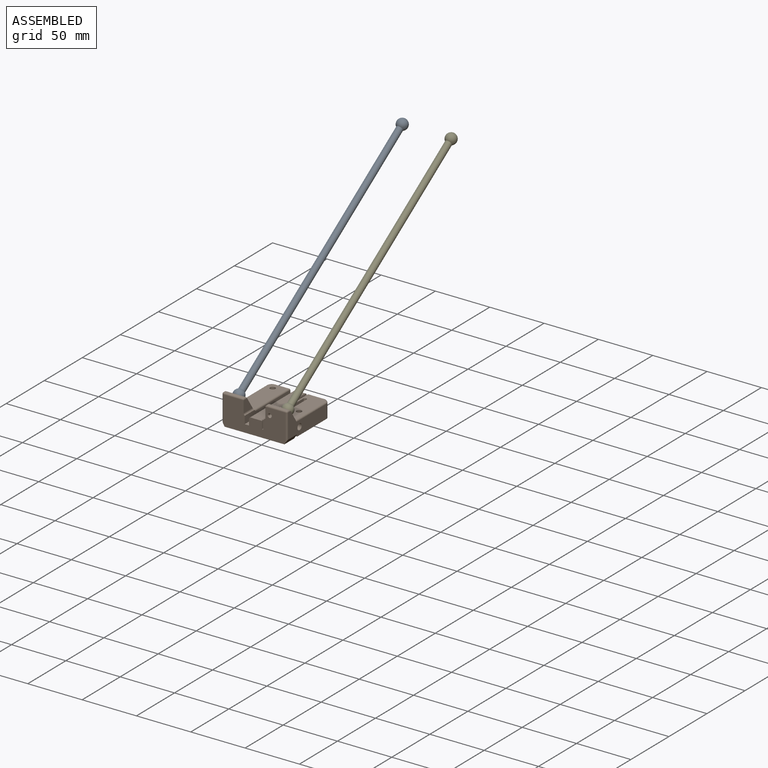
[diagram: assembled view]
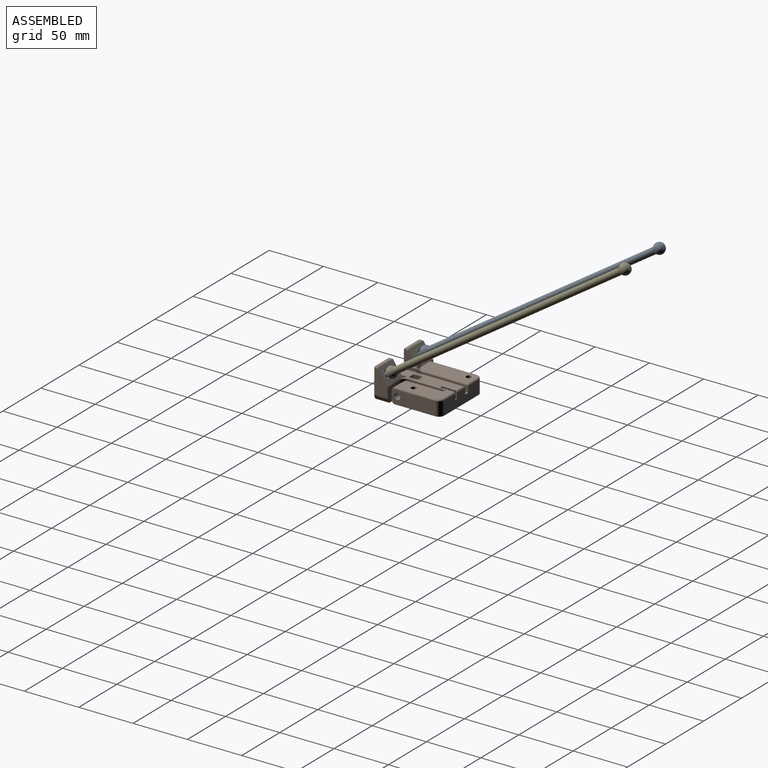
[diagram: assembled view, second angle]
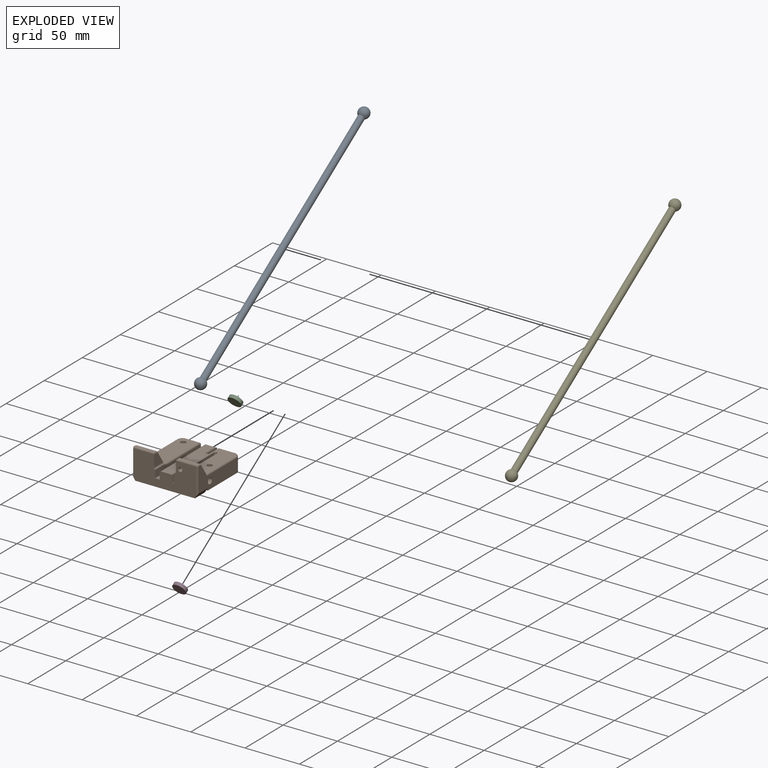
[diagram: exploded view]
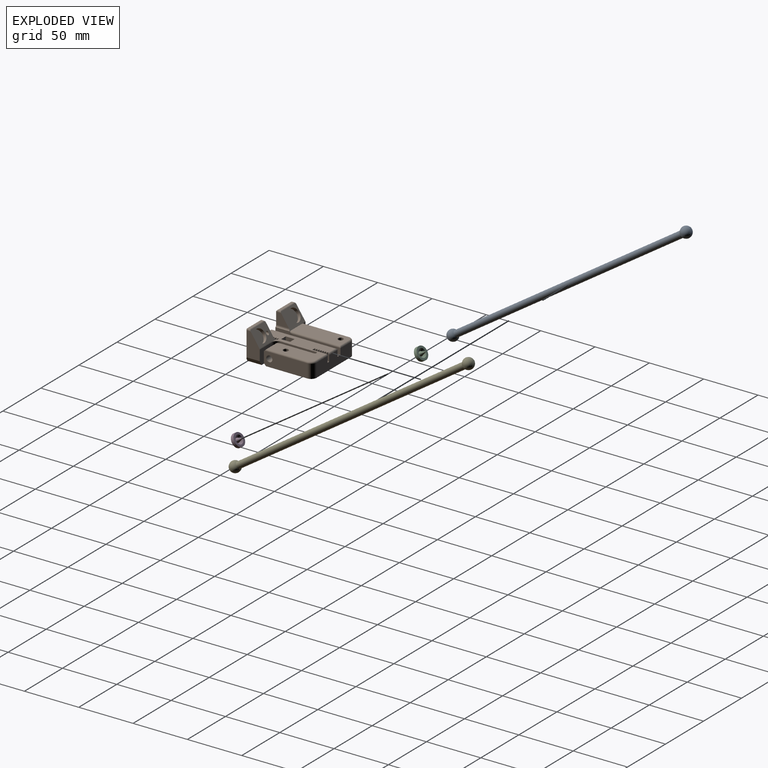
[diagram: exploded view, second angle]
ASSEMBLY  parts=5 mates=4
PART A: 3 faces, bbox 10x268x10 mm
  f0: sphere r=5mm, area 282.7mm2, adj f1
  f1: cylinder r=3mm len=250mm, axis (0,1,0), area 4712.4mm2, adj f0,f2
  f2: sphere r=5mm, area 282.7mm2, adj f1
PART B: 145 faces, bbox 60.4x60.8x28.4 mm
  f0: plane 45.5x15.5mm, normal (0,0,1), area 684.5mm2, adj f3,f14,f115,f116,f117,f118
  f1: plane 58.82x29.82mm, normal (0,0,1), area 1202.9mm2, adj f6,f10,f13,f16,f17,f20,f21,f22
  f2: plane 17x1.36mm, normal (0,0,1), area 23.1mm2, adj f121,f122,f124,f126
  f3: plane 21.42x15.25mm, normal (0,0.83,0.55), area 204.6mm2, adj f0,f9,f29,f35,f40,f72,f108,f115
  f4: plane 10x10mm, normal (0,-1,0), area 100mm2, adj f6,f7,f33,f139
  f5: plane 45x12.5mm, normal (0,1,0), area 529.5mm2, adj f8,f72,f73,f74,f75,f104,f110,f111
  f6: plane 14x2mm, normal (0,-0.71,0.71), area 35.5mm2, adj f1,f4,f33,f114,f139
  f7: plane 14x2mm, normal (0,-0.71,-0.71), area 36.2mm2, adj f4,f8,f33,f139
  f8: plane 60x55mm, normal (0,0,-1), area 2989.2mm2, adj f5,f7,f10,f12,f13,f17,f20,f21
  f9: plane 22.5x11.5mm, normal (-1,0,0), area 203.5mm2, adj f3,f35,f36,f105,f127,f129
  f10: plane 57x26.5mm, normal (0,-1,0), area 1213.2mm2, adj f1,f8,f40,f41,f42,f43,f71,f72
  f11: plane 22.5x11.5mm, normal (1,0,0), area 206.6mm2, adj f12,f27,f106,f122,f123,f134
  f12: plane 15.57x13.55mm, normal (0,1,0), area 205.1mm2, adj f8,f11,f106,f134,f135,f136,f137
  f13: plane 32.52x14mm, normal (1,0,0), area 432.5mm2, adj f1,f8,f19,f133,f135,f137,f138
  f14: cylinder r=2.4mm len=11mm, axis (0,0,-1), area 165.9mm2, adj f0,f39
  f15: cylinder r=2.4mm len=11mm, axis (0,0,-1), area 162.2mm2, adj f28,f36,f38
  f16: cylinder r=2.4mm len=11mm, axis (0,0,-1), area 165.9mm2, adj f1,f37
  f17: plane 30.5x14mm, normal (-1,0,0), area 414.7mm2, adj f1,f8,f18,f133,f139
  f18: cylinder r=2.8mm len=15mm, axis (1,0,0), area 260.2mm2, adj f17,f33,f139
  f19: cylinder r=2.8mm len=5.6mm, axis (1,0,0), area 61.6mm2, adj f13,f22,f136
  f20: plane 14x6mm, normal (0,1,0), area 84mm2, adj f1,f8,f22,f23
  f21: plane 14x6mm, normal (0,-1,0), area 84mm2, adj f1,f8,f22,f23
  f22: plane 14x8.2mm, normal (-1,0,0), area 90.2mm2, adj f1,f8,f19,f20,f21
  f23: plane 14x8.2mm, normal (1,0,0), area 90.2mm2, adj f1,f8,f20,f21,f25
  f24: plane 5.6x5.6mm, normal (1,0,0), area 24.6mm2, adj f25
  f25: cylinder r=2.8mm len=5.6mm, axis (1,0,0), area 52.8mm2, adj f23,f24
  f26: plane 17x1.36mm, normal (0,0,1), area 23.1mm2, adj f129,f130,f131,f132
  f27: plane 21.7x13.62mm, normal (0,0.83,0.55), area 189.8mm2, adj f1,f11,f31,f41,f107,f109,f121,f122
  f28: plane 4.8x4.8mm, normal (0,0,-1), area 18.1mm2, adj f15
  f29: cylinder r=6.1mm len=12.2mm, axis (0,0.83,0.55), area 115mm2, adj f3,f30
  f30: plane 12.2x10.15mm, normal (0,0.83,0.55), area 116.9mm2, adj f29
  f31: cylinder r=6.1mm len=12.2mm, axis (0,0.83,0.55), area 115mm2, adj f27,f32
  f32: plane 12.2x10.15mm, normal (0,0.83,0.55), area 116.9mm2, adj f31
  f33: plane 40x12.5mm, normal (1,0,0), area 473.2mm2, adj f4,f6,f7,f8,f18,f110,f114
  f34: plane 42x12.5mm, normal (-1,0,0), area 525mm2, adj f8,f35,f111,f118
  f35: plane 14x4mm, normal (0,1,0), area 30.5mm2, adj f3,f9,f34,f105,f118
  f36: cylinder r=1mm len=8.67mm, axis (-1,0,0), area 50.1mm2, adj f9,f15
  f37: cone r=2.9mm half-angle=9.5deg, axis (0,0,-1), area 50.6mm2, adj f8,f16
  f38: cone r=2.9mm half-angle=9.5deg, axis (0,0,-1), area 50.6mm2, adj f8,f15
  f39: cone r=2.9mm half-angle=9.5deg, axis (0,0,-1), area 50.6mm2, adj f8,f14
  f40: plane 11.85x10.77mm, normal (1,0,0), area 88.9mm2, adj f3,f10,f108,f132
  f41: plane 11.67x10.5mm, normal (-1,0,0), area 85.7mm2, adj f10,f27,f109,f124
  f42: plane 7x1mm, normal (1,0,0), area 7mm2, adj f1,f10,f70,f71
  f43: plane 14x6.17mm, normal (-1,0,0), area 86.4mm2, adj f10,f44,f71,f144
  f44: plane 7x2.59mm, normal (0,-1,0), area 14.2mm2, adj f1,f43,f45,f71,f144
  f45: plane 7x1mm, normal (1,0,0), area 7mm2, adj f1,f44,f46,f71
  f46: plane 7x1mm, normal (0,1,0), area 7mm2, adj f1,f45,f47,f71
  f47: plane 7x1mm, normal (1,0,0), area 7mm2, adj f1,f46,f48,f71
  f48: plane 7x1mm, normal (0,-1,0), area 7mm2, adj f1,f47,f49,f71
  f49: plane 7x1mm, normal (1,0,0), area 7mm2, adj f1,f48,f50,f71
  f50: plane 7x1mm, normal (0,1,0), area 7mm2, adj f1,f49,f51,f71
  f51: plane 7x1mm, normal (1,0,0), area 7mm2, adj f1,f50,f52,f71
  f52: plane 7x1mm, normal (0,-1,0), area 7mm2, adj f1,f51,f53,f71
  f53: plane 7x1mm, normal (1,0,0), area 7mm2, adj f1,f52,f54,f71
  f54: plane 7x1mm, normal (0,1,0), area 7mm2, adj f1,f53,f55,f71
  f55: plane 7x1mm, normal (1,0,0), area 7mm2, adj f1,f54,f56,f71
  f56: plane 7x1mm, normal (0,-1,0), area 7mm2, adj f1,f55,f57,f71
  f57: plane 7x1mm, normal (1,0,0), area 7mm2, adj f1,f56,f58,f71
  f58: plane 7x1mm, normal (0,1,0), area 7mm2, adj f1,f57,f59,f71
  f59: plane 7x1mm, normal (1,0,0), area 7mm2, adj f1,f58,f60,f71
  f60: plane 7x1mm, normal (0,-1,0), area 7mm2, adj f1,f59,f61,f71
  f61: plane 7x1mm, normal (1,0,0), area 7mm2, adj f1,f60,f62,f71
  f62: plane 7x1mm, normal (0,1,0), area 7mm2, adj f1,f61,f63,f71
  f63: plane 7x1mm, normal (1,0,0), area 7mm2, adj f1,f62,f64,f71
  f64: plane 7x1mm, normal (0,-1,0), area 7mm2, adj f1,f63,f65,f71
  f65: plane 7x1mm, normal (1,0,0), area 7mm2, adj f1,f64,f66,f71
  f66: plane 7x1mm, normal (0,1,0), area 7mm2, adj f1,f65,f67,f71
  f67: plane 7x1mm, normal (1,0,0), area 7mm2, adj f1,f66,f68,f71
  f68: plane 7x1mm, normal (0,-1,0), area 7mm2, adj f1,f67,f69,f71
  f69: plane 7x1mm, normal (1,0,0), area 7mm2, adj f1,f68,f70,f71
  f70: plane 7x1mm, normal (0,1,0), area 7mm2, adj f1,f42,f69,f71
  f71: plane 14x2mm, normal (0,0,1), area 21mm2, adj f10,f42,f43,f44,f45,f46,f47,f48
  f72: plane 60x7mm, normal (1,0,0), area 350.3mm2, adj f3,f5,f10,f74,f108,f115
  f73: plane 60x5.5mm, normal (-1,0,0), area 330mm2, adj f5,f10,f74,f119
  f74: plane 60x4mm, normal (0,0,1), area 240mm2, adj f5,f10,f72,f73
  f75: plane 6.91x1mm, normal (1,0,0), area 6.5mm2, adj f5,f76,f104,f120
  f76: plane 6.91x1mm, normal (0,-1,0), area 6.9mm2, adj f75,f77,f104,f120
  f77: plane 7x1mm, normal (1,0,0), area 7mm2, adj f1,f76,f78,f104,f120
  f78: plane 7x1mm, normal (0,1,0), area 7mm2, adj f1,f77,f79,f104
  f79: plane 7x1mm, normal (1,0,0), area 7mm2, adj f1,f78,f80,f104
  f80: plane 7x1mm, normal (0,-1,0), area 7mm2, adj f1,f79,f81,f104
  f81: plane 7x1mm, normal (1,0,0), area 7mm2, adj f1,f80,f82,f104
  f82: plane 7x1mm, normal (0,1,0), area 7mm2, adj f1,f81,f83,f104
  f83: plane 7x1mm, normal (1,0,0), area 7mm2, adj f1,f82,f84,f104
  f84: plane 7x1mm, normal (0,-1,0), area 7mm2, adj f1,f83,f85,f104
  f85: plane 7x1mm, normal (1,0,0), area 7mm2, adj f1,f84,f86,f104
  f86: plane 7x1mm, normal (0,1,0), area 7mm2, adj f1,f85,f87,f104
  f87: plane 7x1mm, normal (1,0,0), area 7mm2, adj f1,f86,f88,f104
  f88: plane 7x1mm, normal (0,-1,0), area 7mm2, adj f1,f87,f89,f104
  f89: plane 7x1mm, normal (1,0,0), area 7mm2, adj f1,f88,f90,f104
  f90: plane 7x1mm, normal (0,1,0), area 7mm2, adj f1,f89,f91,f104
  f91: plane 7x1mm, normal (1,0,0), area 7mm2, adj f1,f90,f92,f104
  f92: plane 7x1mm, normal (0,-1,0), area 7mm2, adj f1,f91,f93,f104
  f93: plane 7x1mm, normal (1,0,0), area 7mm2, adj f1,f92,f94,f104
  f94: plane 7x1mm, normal (0,1,0), area 7mm2, adj f1,f93,f95,f104
  f95: plane 7x1mm, normal (1,0,0), area 7mm2, adj f1,f94,f96,f104
  f96: plane 7x1mm, normal (0,-1,0), area 7mm2, adj f1,f95,f97,f104
  f97: plane 7x1mm, normal (1,0,0), area 7mm2, adj f1,f96,f98,f104
  f98: plane 7x1mm, normal (0,1,0), area 7mm2, adj f1,f97,f99,f104
  f99: plane 7x1mm, normal (1,0,0), area 7mm2, adj f1,f98,f100,f104
  f100: plane 7x1mm, normal (0,-1,0), area 7mm2, adj f1,f99,f101,f104
  f101: plane 7x1mm, normal (1,0,0), area 7mm2, adj f1,f100,f102,f104
  f102: plane 7x3mm, normal (0,1,0), area 14.5mm2, adj f1,f101,f103,f104,f141
  f103: plane 13x6mm, normal (-1,0,0), area 77.9mm2, adj f102,f104,f141,f142,f143
  f104: plane 14x3mm, normal (0,0,1), area 21.5mm2, adj f5,f75,f76,f77,f78,f79,f80,f81
  f105: plane 13x4mm, normal (-0.85,0,-0.53), area 60.4mm2, adj f8,f9,f10,f35,f127
  f106: plane 13x4mm, normal (0.85,0,-0.53), area 60.4mm2, adj f8,f10,f11,f12,f123
  f107: cylinder r=1.4mm len=8.81mm, axis (0,-1,0), area 69.2mm2, adj f27,f140
  f108: cylinder r=2mm len=13mm, axis (0,1,0), area 26mm2, adj f3,f10,f40,f72
  f109: cylinder r=2mm len=12.92mm, axis (0,-1,0), area 30.3mm2, adj f10,f27,f41,f144
  f110: cylinder r=5mm len=12.5mm, axis (0,0,1), area 98.2mm2, adj f5,f8,f33,f113
  f111: cylinder r=5mm len=12.5mm, axis (0,0,-1), area 98.2mm2, adj f5,f8,f34,f117
  f112: cylinder r=1.5mm len=14.5mm, axis (1,0,0), area 34.2mm2, adj f1,f5,f113,f142
  f113: torus R=3.5mm, axis (0,0,1), area 16.5mm2, adj f1,f110,f112,f114
  f114: cylinder r=1.5mm len=39.5mm, axis (0,1,0), area 90.8mm2, adj f1,f6,f33,f113
  f115: cylinder r=1.5mm len=47mm, axis (0,1,0), area 108.3mm2, adj f0,f3,f72,f116
  f116: cylinder r=1.5mm len=13.5mm, axis (1,0,0), area 30.5mm2, adj f0,f5,f115,f117
  f117: torus R=3.5mm, axis (0,0,1), area 16.5mm2, adj f0,f111,f116,f118
  f118: cylinder r=1.5mm len=42mm, axis (0,-1,0), area 99mm2, adj f0,f34,f35,f117
  f119: cylinder r=1.5mm len=60mm, axis (0,-1,0), area 140.1mm2, adj f1,f10,f73,f120
  f120: cylinder r=1.5mm len=11mm, axis (1,0,0), area 24.1mm2, adj f1,f5,f75,f76,f77,f119
  f121: cylinder r=1.5mm len=19.5mm, axis (1,0,0), area 26.9mm2, adj f2,f27,f122,f124
  f122: cylinder r=1.5mm len=3.16mm, axis (0,-1,0), area 5.5mm2, adj f2,f11,f27,f121,f125
  f123: cylinder r=1.5mm len=24.9mm, axis (0,0,1), area 55.1mm2, adj f10,f11,f106,f125
  f124: cylinder r=1.5mm len=4.66mm, axis (0,1,0), area 7.7mm2, adj f2,f27,f41,f121,f126
  f125: sphere r=1.5mm, area 3.5mm2, adj f122,f123,f126
  f126: cylinder r=1.5mm len=18.5mm, axis (1,0,0), area 42.3mm2, adj f2,f10,f124,f125
  f127: cylinder r=1.5mm len=24.9mm, axis (0,0,1), area 55.1mm2, adj f9,f10,f105,f128
  f128: sphere r=1.5mm, area 3.5mm2, adj f127,f129,f130
  f129: cylinder r=1.5mm len=3.16mm, axis (0,-1,0), area 5.5mm2, adj f3,f9,f26,f128,f131
  f130: cylinder r=1.5mm len=18.5mm, axis (1,0,0), area 42.3mm2, adj f10,f26,f128,f132
  f131: cylinder r=1.5mm len=19.5mm, axis (1,0,0), area 26.9mm2, adj f3,f26,f129,f132
  f132: cylinder r=1.5mm len=4.66mm, axis (0,-1,0), area 7.7mm2, adj f3,f26,f40,f130,f131
  f133: cylinder r=1.5mm len=14mm, axis (0,0,-1), area 66mm2, adj f1,f8,f13,f17
  f134: cylinder r=1.5mm len=15.5mm, axis (-1,0,0), area 13.7mm2, adj f11,f12,f27,f138
  f135: cylinder r=5mm len=5.04mm, axis (0,0,-1), area 39.6mm2, adj f8,f12,f13,f136
  f136: bspline ~5x5mm, area 28.6mm2, adj f12,f19,f135,f137
  f137: cylinder r=5mm len=5mm, axis (0,0,-1), area 36mm2, adj f12,f13,f136,f138
  f138: torus R=6.5mm, axis (-1,0,0), area 4.4mm2, adj f1,f13,f27,f134,f137
  f139: cylinder r=5mm len=14mm, axis (0,0,1), area 84.9mm2, adj f1,f4,f6,f7,f8,f17,f18
  f140: cone r=1.4mm half-angle=26.6deg, axis (0,-1,0), area 11.6mm2, adj f10,f107
  f141: plane 12.5x1mm, normal (-0.71,0,0.71), area 17.7mm2, adj f1,f102,f103,f142
  f142: cone r=0.5mm half-angle=45deg, axis (1,0,0), area 2.2mm2, adj f103,f112,f141,f143
  f143: plane 5.5x1mm, normal (-0.71,0.71,0), area 7.8mm2, adj f5,f103,f104,f142
  f144: plane 14x0.94mm, normal (-0.82,0,0.58), area 16mm2, adj f1,f10,f27,f43,f44,f109
PART C: 8 faces, bbox 12x12x7.1 mm
  f0: cone r=0mm half-angle=19.5deg, axis (0,0,-1), area 41.9mm2, adj f1
  f1: cone r=4mm half-angle=45deg, axis (0,0,1), area 51.3mm2, adj f0,f2
  f2: plane 12x12mm, normal (0,0,1), area 62.8mm2, adj f1,f3
  f3: cylinder r=6mm len=12mm, axis (0,0,-1), area 113.1mm2, adj f2,f4
  f4: plane 12x12mm, normal (0,0,-1), area 113.1mm2, adj f3
  f5: cone r=0mm half-angle=19.5deg, axis (0,0,-1), area 5.3mm2, adj f6,f7
  f6: plane 2.12x1.06mm, normal (0,0,1), area 1.8mm2, adj f5,f7
  f7: plane 3x2.12mm, normal (1,0,0), area 3.2mm2, adj f5,f6
PART D: same geometry as C
PART E: same geometry as A
PLACE A rot(axis=(-0.69,0.21,-0.69),156.3deg) t=(13.78,243.93,189.34)mm
PLACE B t=(36.28,47.57,22.94)mm
PLACE C rot(axis=(-1,0,0),56.3deg) t=(13.78,23.4,42.27)mm
PLACE D rot(axis=(-1,0,0),56.3deg) t=(58.78,23.4,42.27)mm
PLACE E rot(axis=(-0.69,0.21,-0.69),156.3deg) t=(58.78,243.93,189.34)mm
MATE ball A.f2 <-> C.f7  axis (1,0,0) through (13.78,29.29,46.19)mm
MATE fastened C.f1 <-> B.f29  axis (0,-0.83,-0.55) through (13.78,23.4,42.27)mm
MATE fastened D.f1 <-> B.f31  axis (0,-0.83,-0.55) through (58.78,23.4,42.27)mm
MATE ball E.f2 <-> D.f7  axis (1,0,0) through (58.78,29.29,46.19)mm
